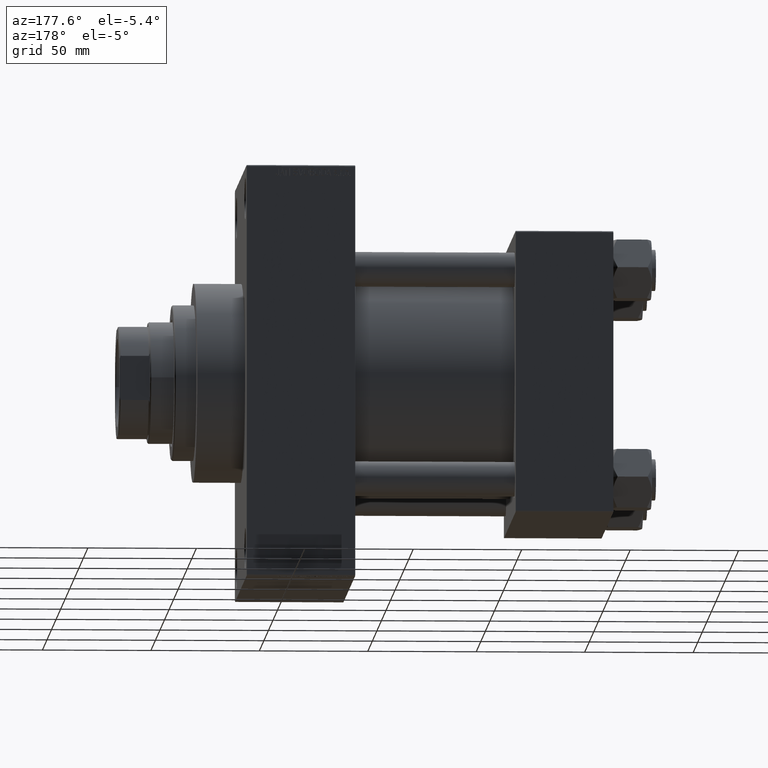
[diagram: clean part render]
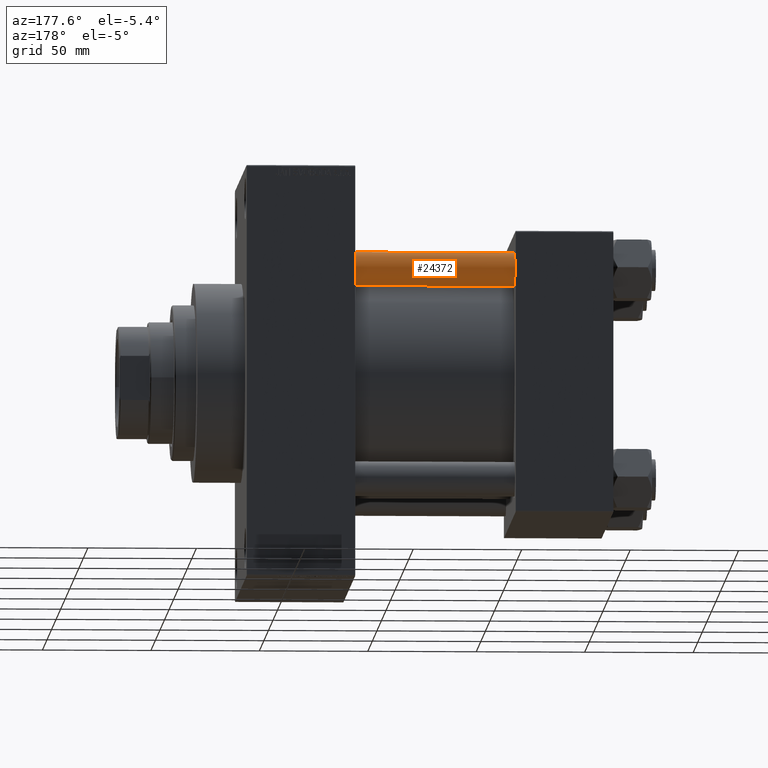
[diagram: same view with one face highlighted and labeled with its STEP entity id]
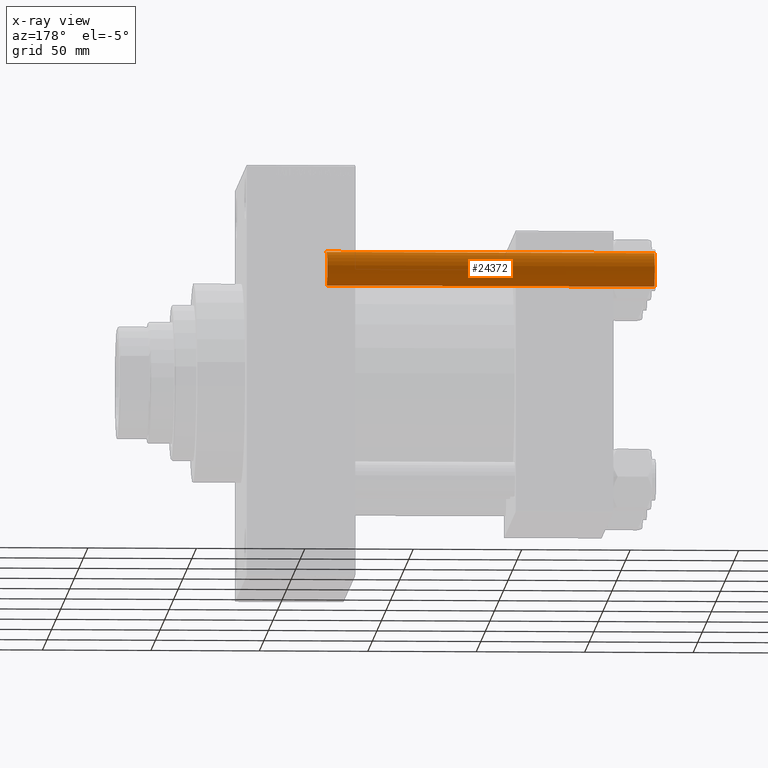
[diagram: x-ray of the same camera — body ghosted, the highlighted face saturated]
A machine part, auxiliary view. The second image highlights one B-rep face of the part: STEP entity #24372.
The next image is the same camera in x-ray: the body ghosted, the highlighted face saturated — about 0% of this face is hidden behind the body in this view.
In plain terms, the highlighted cylindrical surface (edge-blend (fillet) strip) has radius 8 mm, axis along (-1, -0, 0).
Its self-contained STEP definition (entity closure, byte-faithful):
#587 = DIRECTION ( 'NONE',  ( -0.000000000000000000, -0.000000000000000000, -1.000000000000000000 ) ) ;
#1158 = EDGE_CURVE ( 'NONE', #24070, #13755, #23271, .T. ) ;
#1297 = FACE_OUTER_BOUND ( 'NONE', #45759, .T. ) ;
#5133 = ORIENTED_EDGE ( 'NONE', *, *, #31069, .T. ) ;
#5163 = CARTESIAN_POINT ( 'NONE',  ( 0.000000000000000000, 0.000000000000000000, 152.0000000000000000 ) ) ;
#6520 = ORIENTED_EDGE ( 'NONE', *, *, #17915, .F. ) ;
#6545 = CARTESIAN_POINT ( 'NONE',  ( -8.000000000000000000, 0.000000000000000000, 152.0000000000000000 ) ) ;
#7385 = DIRECTION ( 'NONE',  ( -0.000000000000000000, -0.000000000000000000, 1.000000000000000000 ) ) ;
#10764 = CARTESIAN_POINT ( 'NONE',  ( 0.000000000000000000, 0.000000000000000000, 0.5000000000000559552 ) ) ;
#11820 = ORIENTED_EDGE ( 'NONE', *, *, #1158, .T. ) ;
#13755 = VERTEX_POINT ( 'NONE', #24497 ) ;
#17915 = EDGE_CURVE ( 'NONE', #33483, #22468, #23920, .T. ) ;
#18907 = DIRECTION ( 'NONE',  ( -1.000000000000000000, 0.000000000000000000, 0.000000000000000000 ) ) ;
#20344 = VECTOR ( 'NONE', #34373, 1000.000000000000000 ) ;
#22468 = VERTEX_POINT ( 'NONE', #24501 ) ;
#23271 = LINE ( 'NONE', #27857, #20344 ) ;
#23920 = LINE ( 'NONE', #6545, #27627 ) ;
#24070 = VERTEX_POINT ( 'NONE', #26046 ) ;
#24372 = ADVANCED_FACE ( 'NONE', ( #1297 ), #44524, .T. ) ;
#24497 = CARTESIAN_POINT ( 'NONE',  ( 8.000000000000000000, 9.797174393178825657E-16, 0.5000000000000559552 ) ) ;
#24501 = CARTESIAN_POINT ( 'NONE',  ( -8.000000000000000000, 0.000000000000000000, 0.5000000000000559552 ) ) ;
#24576 = AXIS2_PLACEMENT_3D ( 'NONE', #10764, #7385, #32497 ) ;
#24993 = AXIS2_PLACEMENT_3D ( 'NONE', #34301, #37450, #38169 ) ;
#26046 = CARTESIAN_POINT ( 'NONE',  ( 8.000000000000000000, 9.797174393178825657E-16, 151.5000000000000000 ) ) ;
#27627 = VECTOR ( 'NONE', #27789, 1000.000000000000000 ) ;
#27789 = DIRECTION ( 'NONE',  ( -0.000000000000000000, -0.000000000000000000, -1.000000000000000000 ) ) ;
#27857 = CARTESIAN_POINT ( 'NONE',  ( 8.000000000000000000, 9.797174393178825657E-16, 152.0000000000000000 ) ) ;
#31069 = EDGE_CURVE ( 'NONE', #33483, #24070, #45821, .T. ) ;
#32497 = DIRECTION ( 'NONE',  ( 1.000000000000000000, 0.000000000000000000, 0.000000000000000000 ) ) ;
#33483 = VERTEX_POINT ( 'NONE', #35520 ) ;
#34301 = CARTESIAN_POINT ( 'NONE',  ( 0.000000000000000000, 0.000000000000000000, 151.5000000000000000 ) ) ;
#34373 = DIRECTION ( 'NONE',  ( -0.000000000000000000, -0.000000000000000000, -1.000000000000000000 ) ) ;
#35520 = CARTESIAN_POINT ( 'NONE',  ( -8.000000000000000000, 0.000000000000000000, 151.5000000000000000 ) ) ;
#37450 = DIRECTION ( 'NONE',  ( 0.000000000000000000, 0.000000000000000000, -1.000000000000000000 ) ) ;
#38169 = DIRECTION ( 'NONE',  ( 1.000000000000000000, 0.000000000000000000, 0.000000000000000000 ) ) ;
#39541 = ORIENTED_EDGE ( 'NONE', *, *, #44602, .T. ) ;
#41734 = AXIS2_PLACEMENT_3D ( 'NONE', #5163, #587, #18907 ) ;
#44524 = CYLINDRICAL_SURFACE ( 'NONE', #41734, 8.000000000000000000 ) ;
#44602 = EDGE_CURVE ( 'NONE', #13755, #22468, #46169, .T. ) ;
#45759 = EDGE_LOOP ( 'NONE', ( #5133, #11820, #39541, #6520 ) ) ;
#45821 = CIRCLE ( 'NONE', #24993, 8.000000000000000000 ) ;
#46169 = CIRCLE ( 'NONE', #24576, 8.000000000000000000 ) ;